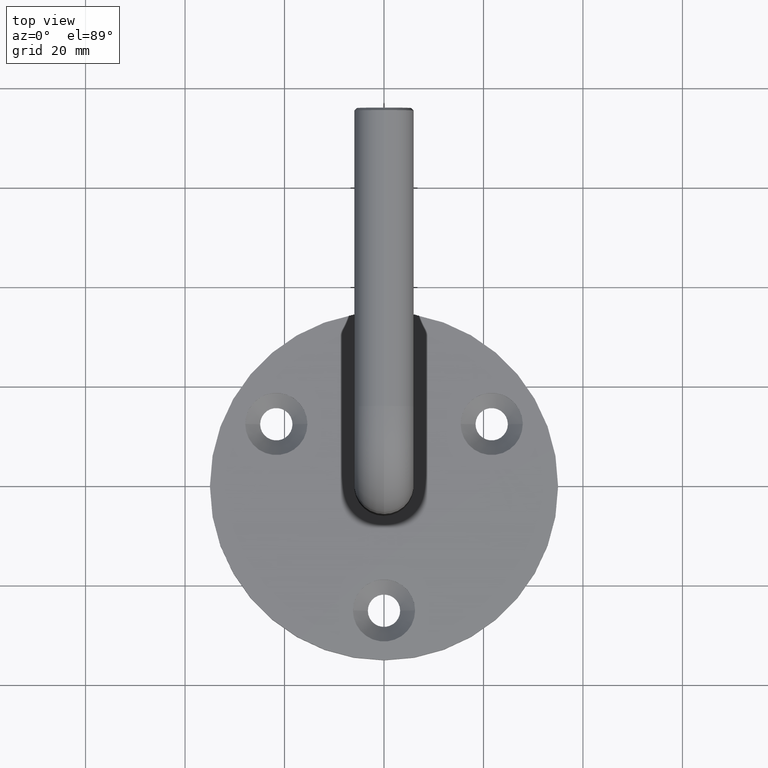
[diagram: clean part render]
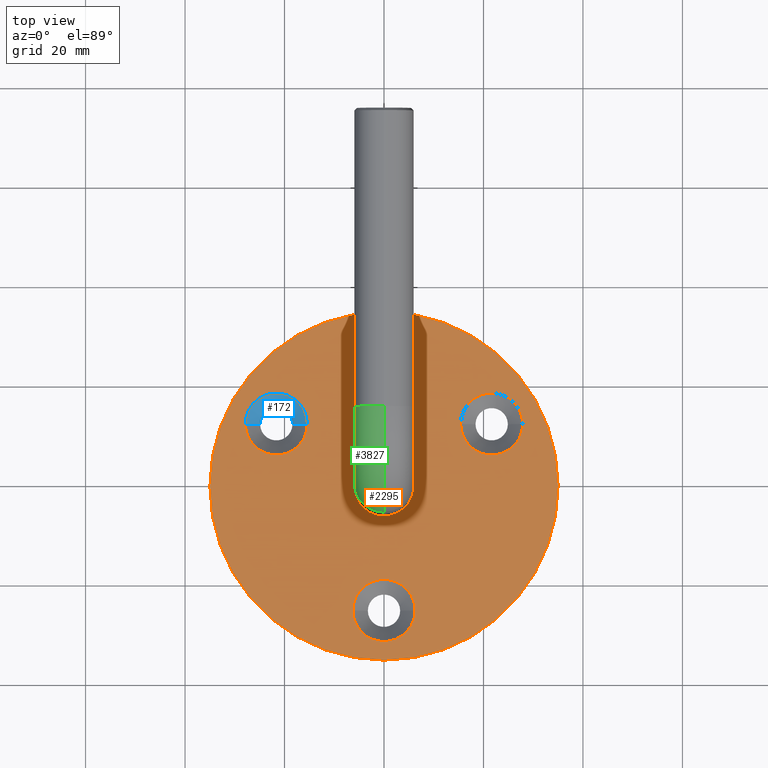
[diagram: same view with three faces highlighted in distinct colors, each labeled with its STEP entity id]
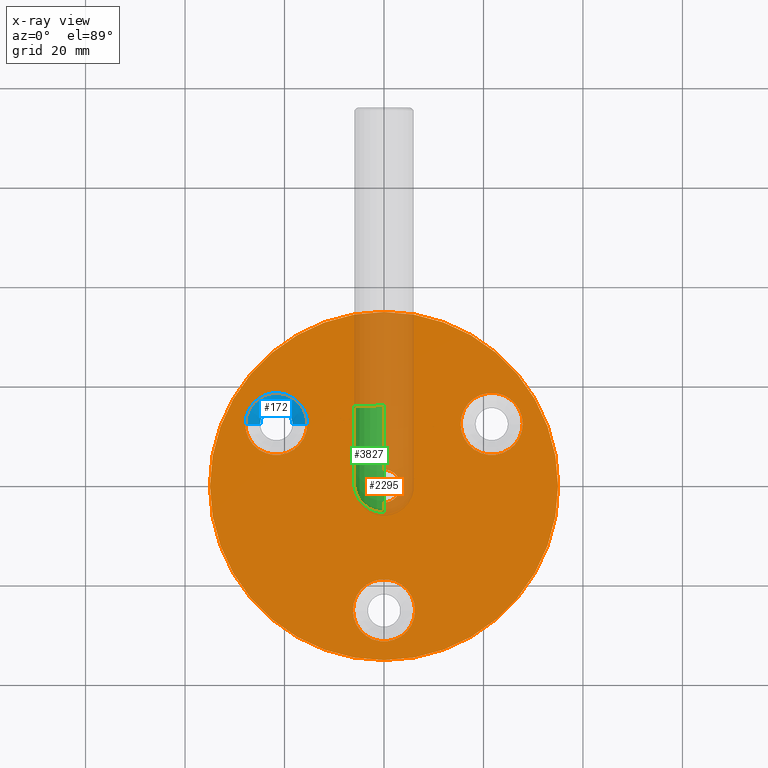
[diagram: x-ray of the same camera — body ghosted, the three highlighted faces saturated]
A machine part, top view with three faces highlighted in distinct colors.
The next image is the same camera in x-ray (body ghosted, the three faces saturated) — at least one of them is partly hidden behind the body in this view.
Their STEP definitions:

[orange] entity #2295 — the highlighted planar face has unit normal (0, 0, 1).
#319 = CIRCLE ( 'NONE', #4147, 6.249999999999998224 ) ;
#391 = CIRCLE ( 'NONE', #5711, 6.250000000000000000 ) ;
#863 = DIRECTION ( 'NONE',  ( -0.000000000000000000, -0.000000000000000000, 1.000000000000000000 ) ) ;
#1229 = ORIENTED_EDGE ( 'NONE', *, *, #7412, .F. ) ;
#1290 = CARTESIAN_POINT ( 'NONE',  ( -27.90063509461091584, 12.50000000000009948, 4.000000000000000000 ) ) ;
#1667 = CARTESIAN_POINT ( 'NONE',  ( -35.00000000000000000, 0.000000000000000000, 4.000000000000000000 ) ) ;
#1976 = CARTESIAN_POINT ( 'NONE',  ( 21.65063509461108282, 12.49999999999980282, 4.000000000000000000 ) ) ;
#2295 = ADVANCED_FACE ( 'NONE', ( #15876, #6866, #18294, #21822, #7427 ), #21691, .T. ) ;
#2400 = DIRECTION ( 'NONE',  ( 1.000000000000000000, 0.000000000000000000, 0.000000000000000000 ) ) ;
#2468 = EDGE_CURVE ( 'NONE', #12217, #9859, #17209, .T. ) ;
#2552 = AXIS2_PLACEMENT_3D ( 'NONE', #22542, #15718, #17366 ) ;
#2825 = CARTESIAN_POINT ( 'NONE',  ( 0.000000000000000000, 0.000000000000000000, 4.000000000000000000 ) ) ;
#3026 = AXIS2_PLACEMENT_3D ( 'NONE', #5347, #5574, #3829 ) ;
#3348 = CARTESIAN_POINT ( 'NONE',  ( 35.00000000000000000, 4.286263797015736496E-15, 4.000000000000000000 ) ) ;
#3388 = AXIS2_PLACEMENT_3D ( 'NONE', #5242, #19149, #12162 ) ;
#3568 = ORIENTED_EDGE ( 'NONE', *, *, #14435, .T. ) ;
#3829 = DIRECTION ( 'NONE',  ( 1.000000000000000000, 0.000000000000000000, 0.000000000000000000 ) ) ;
#4009 = DIRECTION ( 'NONE',  ( 1.000000000000000000, 0.000000000000000000, 0.000000000000000000 ) ) ;
#4128 = EDGE_CURVE ( 'NONE', #10539, #17674, #21774, .T. ) ;
#4147 = AXIS2_PLACEMENT_3D ( 'NONE', #1976, #17935, #8963 ) ;
#4419 = DIRECTION ( 'NONE',  ( -1.000000000000000000, 0.000000000000000000, 0.000000000000000000 ) ) ;
#4520 = CARTESIAN_POINT ( 'NONE',  ( 15.40063509461108637, 12.49999999999980282, 4.000000000000000000 ) ) ;
#4566 = VERTEX_POINT ( 'NONE', #21371 ) ;
#4621 = ORIENTED_EDGE ( 'NONE', *, *, #17315, .F. ) ;
#5065 = DIRECTION ( 'NONE',  ( -1.000000000000000000, 0.000000000000000000, 0.000000000000000000 ) ) ;
#5242 = CARTESIAN_POINT ( 'NONE',  ( 3.061616997868381465E-15, -25.00000000000000000, 4.000000000000000000 ) ) ;
#5266 = EDGE_LOOP ( 'NONE', ( #8749, #3568 ) ) ;
#5347 = CARTESIAN_POINT ( 'NONE',  ( 0.000000000000000000, 0.000000000000000000, 4.000000000000000000 ) ) ;
#5574 = DIRECTION ( 'NONE',  ( 0.000000000000000000, 0.000000000000000000, 1.000000000000000000 ) ) ;
#5711 = AXIS2_PLACEMENT_3D ( 'NONE', #21069, #8674, #15539 ) ;
#5747 = ORIENTED_EDGE ( 'NONE', *, *, #13069, .T. ) ;
#5830 = CARTESIAN_POINT ( 'NONE',  ( -15.40063509461091407, 12.50000000000009948, 4.000000000000000000 ) ) ;
#6025 = DIRECTION ( 'NONE',  ( 0.000000000000000000, 0.000000000000000000, 1.000000000000000000 ) ) ;
#6198 = EDGE_LOOP ( 'NONE', ( #4621, #16569 ) ) ;
#6258 = VERTEX_POINT ( 'NONE', #18293 ) ;
#6612 = CARTESIAN_POINT ( 'NONE',  ( 21.65063509461108282, 12.49999999999980282, 4.000000000000000000 ) ) ;
#6866 = FACE_BOUND ( 'NONE', #8000, .T. ) ;
#6986 = CIRCLE ( 'NONE', #9442, 3.299999999999999822 ) ;
#7412 = EDGE_CURVE ( 'NONE', #9859, #12217, #319, .T. ) ;
#7427 = FACE_OUTER_BOUND ( 'NONE', #18978, .T. ) ;
#7699 = DIRECTION ( 'NONE',  ( -0.000000000000000000, -0.000000000000000000, -1.000000000000000000 ) ) ;
#8000 = EDGE_LOOP ( 'NONE', ( #21934, #22064 ) ) ;
#8674 = DIRECTION ( 'NONE',  ( -0.000000000000000000, -0.000000000000000000, 1.000000000000000000 ) ) ;
#8749 = ORIENTED_EDGE ( 'NONE', *, *, #13204, .T. ) ;
#8963 = DIRECTION ( 'NONE',  ( 1.000000000000000000, 0.000000000000000000, 0.000000000000000000 ) ) ;
#9218 = ORIENTED_EDGE ( 'NONE', *, *, #9365, .T. ) ;
#9365 = EDGE_CURVE ( 'NONE', #15273, #16583, #10326, .T. ) ;
#9442 = AXIS2_PLACEMENT_3D ( 'NONE', #11842, #20806, #5065 ) ;
#9525 = DIRECTION ( 'NONE',  ( 1.000000000000000000, 0.000000000000000000, 0.000000000000000000 ) ) ;
#9859 = VERTEX_POINT ( 'NONE', #14241 ) ;
#10326 = CIRCLE ( 'NONE', #2552, 35.00000000000000000 ) ;
#10539 = VERTEX_POINT ( 'NONE', #5830 ) ;
#10839 = CIRCLE ( 'NONE', #13963, 3.299999999999999822 ) ;
#11431 = DIRECTION ( 'NONE',  ( 1.000000000000000000, 0.000000000000000000, -0.000000000000000000 ) ) ;
#11700 = CIRCLE ( 'NONE', #3388, 6.250000000000000000 ) ;
#11842 = CARTESIAN_POINT ( 'NONE',  ( 0.000000000000000000, 0.000000000000000000, 4.000000000000000000 ) ) ;
#12162 = DIRECTION ( 'NONE',  ( 1.000000000000000000, 0.000000000000000000, 0.000000000000000000 ) ) ;
#12217 = VERTEX_POINT ( 'NONE', #4520 ) ;
#13030 = CARTESIAN_POINT ( 'NONE',  ( -21.65063509461091584, 12.50000000000009948, 4.000000000000000000 ) ) ;
#13069 = EDGE_CURVE ( 'NONE', #16583, #15273, #19798, .T. ) ;
#13204 = EDGE_CURVE ( 'NONE', #22359, #4566, #10839, .T. ) ;
#13638 = EDGE_LOOP ( 'NONE', ( #1229, #15636 ) ) ;
#13963 = AXIS2_PLACEMENT_3D ( 'NONE', #2825, #7699, #4419 ) ;
#14241 = CARTESIAN_POINT ( 'NONE',  ( 27.90063509461108282, 12.49999999999980282, 4.000000000000000000 ) ) ;
#14435 = EDGE_CURVE ( 'NONE', #4566, #22359, #6986, .T. ) ;
#15273 = VERTEX_POINT ( 'NONE', #3348 ) ;
#15291 = CARTESIAN_POINT ( 'NONE',  ( -6.249999999999996447, -25.00000000000000000, 4.000000000000000000 ) ) ;
#15342 = VERTEX_POINT ( 'NONE', #15291 ) ;
#15539 = DIRECTION ( 'NONE',  ( 1.000000000000000000, 0.000000000000000000, 0.000000000000000000 ) ) ;
#15636 = ORIENTED_EDGE ( 'NONE', *, *, #2468, .F. ) ;
#15718 = DIRECTION ( 'NONE',  ( 0.000000000000000000, 0.000000000000000000, 1.000000000000000000 ) ) ;
#15876 = FACE_BOUND ( 'NONE', #13638, .T. ) ;
#15942 = CARTESIAN_POINT ( 'NONE',  ( -3.299999999999999822, 0.000000000000000000, 4.000000000000000000 ) ) ;
#16422 = CIRCLE ( 'NONE', #18663, 6.250000000000000000 ) ;
#16569 = ORIENTED_EDGE ( 'NONE', *, *, #18619, .F. ) ;
#16583 = VERTEX_POINT ( 'NONE', #1667 ) ;
#17209 = CIRCLE ( 'NONE', #21486, 6.249999999999998224 ) ;
#17315 = EDGE_CURVE ( 'NONE', #6258, #15342, #391, .T. ) ;
#17366 = DIRECTION ( 'NONE',  ( 1.000000000000000000, 0.000000000000000000, 0.000000000000000000 ) ) ;
#17674 = VERTEX_POINT ( 'NONE', #1290 ) ;
#17704 = AXIS2_PLACEMENT_3D ( 'NONE', #18278, #6025, #11431 ) ;
#17935 = DIRECTION ( 'NONE',  ( -0.000000000000000000, -0.000000000000000000, 1.000000000000000000 ) ) ;
#18059 = EDGE_CURVE ( 'NONE', #17674, #10539, #16422, .T. ) ;
#18278 = CARTESIAN_POINT ( 'NONE',  ( 0.000000000000000000, 0.000000000000000000, 4.000000000000000000 ) ) ;
#18293 = CARTESIAN_POINT ( 'NONE',  ( 6.250000000000003553, -25.00000000000000000, 4.000000000000000000 ) ) ;
#18294 = FACE_BOUND ( 'NONE', #6198, .T. ) ;
#18394 = AXIS2_PLACEMENT_3D ( 'NONE', #13030, #863, #9525 ) ;
#18619 = EDGE_CURVE ( 'NONE', #15342, #6258, #11700, .T. ) ;
#18663 = AXIS2_PLACEMENT_3D ( 'NONE', #19891, #21631, #2400 ) ;
#18978 = EDGE_LOOP ( 'NONE', ( #5747, #9218 ) ) ;
#19149 = DIRECTION ( 'NONE',  ( -0.000000000000000000, -0.000000000000000000, 1.000000000000000000 ) ) ;
#19467 = DIRECTION ( 'NONE',  ( -0.000000000000000000, -0.000000000000000000, 1.000000000000000000 ) ) ;
#19798 = CIRCLE ( 'NONE', #3026, 35.00000000000000000 ) ;
#19891 = CARTESIAN_POINT ( 'NONE',  ( -21.65063509461091584, 12.50000000000009948, 4.000000000000000000 ) ) ;
#20806 = DIRECTION ( 'NONE',  ( -0.000000000000000000, -0.000000000000000000, -1.000000000000000000 ) ) ;
#21069 = CARTESIAN_POINT ( 'NONE',  ( 3.061616997868381465E-15, -25.00000000000000000, 4.000000000000000000 ) ) ;
#21371 = CARTESIAN_POINT ( 'NONE',  ( 3.299999999999999822, 4.041334437186265510E-16, 4.000000000000000000 ) ) ;
#21486 = AXIS2_PLACEMENT_3D ( 'NONE', #6612, #19467, #4009 ) ;
#21631 = DIRECTION ( 'NONE',  ( -0.000000000000000000, -0.000000000000000000, 1.000000000000000000 ) ) ;
#21691 = PLANE ( 'NONE',  #17704 ) ;
#21774 = CIRCLE ( 'NONE', #18394, 6.250000000000000000 ) ;
#21822 = FACE_BOUND ( 'NONE', #5266, .T. ) ;
#21934 = ORIENTED_EDGE ( 'NONE', *, *, #4128, .F. ) ;
#22064 = ORIENTED_EDGE ( 'NONE', *, *, #18059, .F. ) ;
#22359 = VERTEX_POINT ( 'NONE', #15942 ) ;
#22542 = CARTESIAN_POINT ( 'NONE',  ( 0.000000000000000000, 0.000000000000000000, 4.000000000000000000 ) ) ;

[blue] entity #172 — the highlighted conical surface has half-angle 45 deg.
#172 = ADVANCED_FACE ( 'NONE', ( #5785 ), #4440, .F. ) ;
#490 = DIRECTION ( 'NONE',  ( 1.000000000000000000, 0.000000000000000000, 0.000000000000000000 ) ) ;
#617 = CARTESIAN_POINT ( 'NONE',  ( -15.40063509461091407, 12.50000000000009948, 3.000000000000000000 ) ) ;
#721 = ORIENTED_EDGE ( 'NONE', *, *, #5913, .T. ) ;
#1550 = DIRECTION ( 'NONE',  ( -0.000000000000000000, -0.000000000000000000, 1.000000000000000000 ) ) ;
#1765 = DIRECTION ( 'NONE',  ( -0.000000000000000000, -0.000000000000000000, 1.000000000000000000 ) ) ;
#2081 = ORIENTED_EDGE ( 'NONE', *, *, #19185, .T. ) ;
#3152 = CARTESIAN_POINT ( 'NONE',  ( -27.90063509461091584, 12.50000000000009948, 3.000000000000000000 ) ) ;
#3696 = AXIS2_PLACEMENT_3D ( 'NONE', #4056, #10918, #490 ) ;
#4056 = CARTESIAN_POINT ( 'NONE',  ( -21.65063509461091584, 12.50000000000009948, 3.000000000000000000 ) ) ;
#4440 = CONICAL_SURFACE ( 'NONE', #6555, 6.250000000000000000, 0.7853981633974485010 ) ;
#4713 = ORIENTED_EDGE ( 'NONE', *, *, #12899, .F. ) ;
#5214 = VERTEX_POINT ( 'NONE', #19720 ) ;
#5785 = FACE_OUTER_BOUND ( 'NONE', #20706, .T. ) ;
#5913 = EDGE_CURVE ( 'NONE', #19002, #9967, #21832, .T. ) ;
#6181 = LINE ( 'NONE', #3152, #7846 ) ;
#6555 = AXIS2_PLACEMENT_3D ( 'NONE', #11959, #1550, #22515 ) ;
#7438 = VECTOR ( 'NONE', #16872, 999.9999999999998863 ) ;
#7846 = VECTOR ( 'NONE', #12117, 999.9999999999998863 ) ;
#9967 = VERTEX_POINT ( 'NONE', #617 ) ;
#10027 = CARTESIAN_POINT ( 'NONE',  ( -15.40063509461091407, 12.50000000000009948, 3.000000000000000000 ) ) ;
#10054 = CARTESIAN_POINT ( 'NONE',  ( -27.90063509461091584, 12.50000000000009948, 3.000000000000000000 ) ) ;
#10918 = DIRECTION ( 'NONE',  ( -0.000000000000000000, -0.000000000000000000, 1.000000000000000000 ) ) ;
#11959 = CARTESIAN_POINT ( 'NONE',  ( -21.65063509461091584, 12.50000000000009948, 3.000000000000000000 ) ) ;
#12117 = DIRECTION ( 'NONE',  ( -0.7071067811865477948, 8.659560562354936556E-17, 0.7071067811865473507 ) ) ;
#12173 = DIRECTION ( 'NONE',  ( 1.000000000000000000, 0.000000000000000000, 0.000000000000000000 ) ) ;
#12899 = EDGE_CURVE ( 'NONE', #5214, #19332, #6181, .T. ) ;
#13367 = CARTESIAN_POINT ( 'NONE',  ( -18.40063509461091584, 12.50000000000009948, 0.000000000000000000 ) ) ;
#13788 = CARTESIAN_POINT ( 'NONE',  ( -21.65063509461091584, 12.50000000000009948, 0.000000000000000000 ) ) ;
#16872 = DIRECTION ( 'NONE',  ( 0.7071067811865477948, 0.000000000000000000, 0.7071067811865473507 ) ) ;
#16983 = CIRCLE ( 'NONE', #17818, 3.249999999999999556 ) ;
#17286 = EDGE_CURVE ( 'NONE', #19002, #5214, #16983, .T. ) ;
#17653 = CIRCLE ( 'NONE', #3696, 6.250000000000000000 ) ;
#17818 = AXIS2_PLACEMENT_3D ( 'NONE', #13788, #1765, #12173 ) ;
#19002 = VERTEX_POINT ( 'NONE', #13367 ) ;
#19185 = EDGE_CURVE ( 'NONE', #9967, #19332, #17653, .T. ) ;
#19332 = VERTEX_POINT ( 'NONE', #10054 ) ;
#19720 = CARTESIAN_POINT ( 'NONE',  ( -24.90063509461091229, 12.50000000000009948, 0.000000000000000000 ) ) ;
#20706 = EDGE_LOOP ( 'NONE', ( #4713, #21455, #721, #2081 ) ) ;
#21455 = ORIENTED_EDGE ( 'NONE', *, *, #17286, .F. ) ;
#21832 = LINE ( 'NONE', #10027, #7438 ) ;
#22515 = DIRECTION ( 'NONE',  ( 1.000000000000000000, 0.000000000000000000, 0.000000000000000000 ) ) ;

[green] entity #3827 — the highlighted toroidal blend (fillet) surface has major radius 15 mm and minor (blend) radius 6 mm.
#1235 = DIRECTION ( 'NONE',  ( 1.000000000000000000, 0.000000000000000000, 0.000000000000000000 ) ) ;
#1592 = CARTESIAN_POINT ( 'NONE',  ( 0.000000000000000000, 14.99999999999999289, 57.99999999999999289 ) ) ;
#1892 = DIRECTION ( 'NONE',  ( 0.000000000000000000, 0.000000000000000000, 1.000000000000000000 ) ) ;
#2104 = AXIS2_PLACEMENT_3D ( 'NONE', #8149, #6224, #6074 ) ;
#3545 = CIRCLE ( 'NONE', #20482, 6.000000000000000888 ) ;
#3561 = DIRECTION ( 'NONE',  ( 1.000000000000000000, 0.000000000000000000, 0.000000000000000000 ) ) ;
#3711 = DIRECTION ( 'NONE',  ( -1.000000000000000000, -0.000000000000000000, 0.000000000000000000 ) ) ;
#3790 = CARTESIAN_POINT ( 'NONE',  ( 7.347880794884123680E-16, -6.000000000000006217, 43.00000000000000000 ) ) ;
#3827 = ADVANCED_FACE ( 'NONE', ( #14720 ), #15572, .T. ) ;
#3866 = AXIS2_PLACEMENT_3D ( 'NONE', #1592, #5008, #3561 ) ;
#4353 = CARTESIAN_POINT ( 'NONE',  ( 7.347880794884120722E-16, 14.99999999999999467, 43.00000000000000000 ) ) ;
#4911 = EDGE_CURVE ( 'NONE', #17958, #21025, #13325, .T. ) ;
#4912 = CARTESIAN_POINT ( 'NONE',  ( 0.000000000000000000, 14.99999999999999289, 64.00000000000000000 ) ) ;
#5008 = DIRECTION ( 'NONE',  ( 0.000000000000000000, 1.000000000000000000, 6.123233995736766036E-17 ) ) ;
#6074 = DIRECTION ( 'NONE',  ( 0.000000000000000000, 0.000000000000000000, 1.000000000000000000 ) ) ;
#6224 = DIRECTION ( 'NONE',  ( -1.000000000000000000, -0.000000000000000000, 0.000000000000000000 ) ) ;
#6690 = EDGE_CURVE ( 'NONE', #7517, #9540, #20189, .T. ) ;
#6971 = CARTESIAN_POINT ( 'NONE',  ( 0.000000000000000000, 14.99999999999999467, 43.00000000000000000 ) ) ;
#7517 = VERTEX_POINT ( 'NONE', #19604 ) ;
#8149 = CARTESIAN_POINT ( 'NONE',  ( 0.000000000000000000, 14.99999999999999467, 43.00000000000000000 ) ) ;
#8443 = EDGE_CURVE ( 'NONE', #7517, #17958, #3545, .T. ) ;
#8671 = ORIENTED_EDGE ( 'NONE', *, *, #8443, .T. ) ;
#9540 = VERTEX_POINT ( 'NONE', #19943 ) ;
#9968 = DIRECTION ( 'NONE',  ( 0.000000000000000000, 0.000000000000000000, 1.000000000000000000 ) ) ;
#11567 = CARTESIAN_POINT ( 'NONE',  ( 0.000000000000000000, -5.204170427930421283E-15, 43.00000000000000000 ) ) ;
#12817 = EDGE_LOOP ( 'NONE', ( #8671, #16962, #17778, #17025 ) ) ;
#13187 = DIRECTION ( 'NONE',  ( 0.000000000000000000, 0.000000000000000000, 1.000000000000000000 ) ) ;
#13325 = CIRCLE ( 'NONE', #14184, 20.99999999999999645 ) ;
#13643 = DIRECTION ( 'NONE',  ( -1.000000000000000000, -0.000000000000000000, 0.000000000000000000 ) ) ;
#14184 = AXIS2_PLACEMENT_3D ( 'NONE', #6971, #3711, #1892 ) ;
#14645 = AXIS2_PLACEMENT_3D ( 'NONE', #4353, #13643, #13187 ) ;
#14720 = FACE_OUTER_BOUND ( 'NONE', #12817, .T. ) ;
#15572 = TOROIDAL_SURFACE ( 'NONE', #2104, 15.00000000000000000, 6.000000000000000888 ) ;
#16008 = CIRCLE ( 'NONE', #3866, 6.000000000000000888 ) ;
#16962 = ORIENTED_EDGE ( 'NONE', *, *, #4911, .T. ) ;
#17025 = ORIENTED_EDGE ( 'NONE', *, *, #6690, .F. ) ;
#17778 = ORIENTED_EDGE ( 'NONE', *, *, #20529, .F. ) ;
#17958 = VERTEX_POINT ( 'NONE', #3790 ) ;
#19604 = CARTESIAN_POINT ( 'NONE',  ( 0.000000000000000000, 5.999999999999995559, 43.00000000000000000 ) ) ;
#19943 = CARTESIAN_POINT ( 'NONE',  ( 7.347880794884122694E-16, 14.99999999999999289, 52.00000000000000000 ) ) ;
#20189 = CIRCLE ( 'NONE', #14645, 9.000000000000001776 ) ;
#20482 = AXIS2_PLACEMENT_3D ( 'NONE', #11567, #9968, #1235 ) ;
#20529 = EDGE_CURVE ( 'NONE', #9540, #21025, #16008, .T. ) ;
#21025 = VERTEX_POINT ( 'NONE', #4912 ) ;